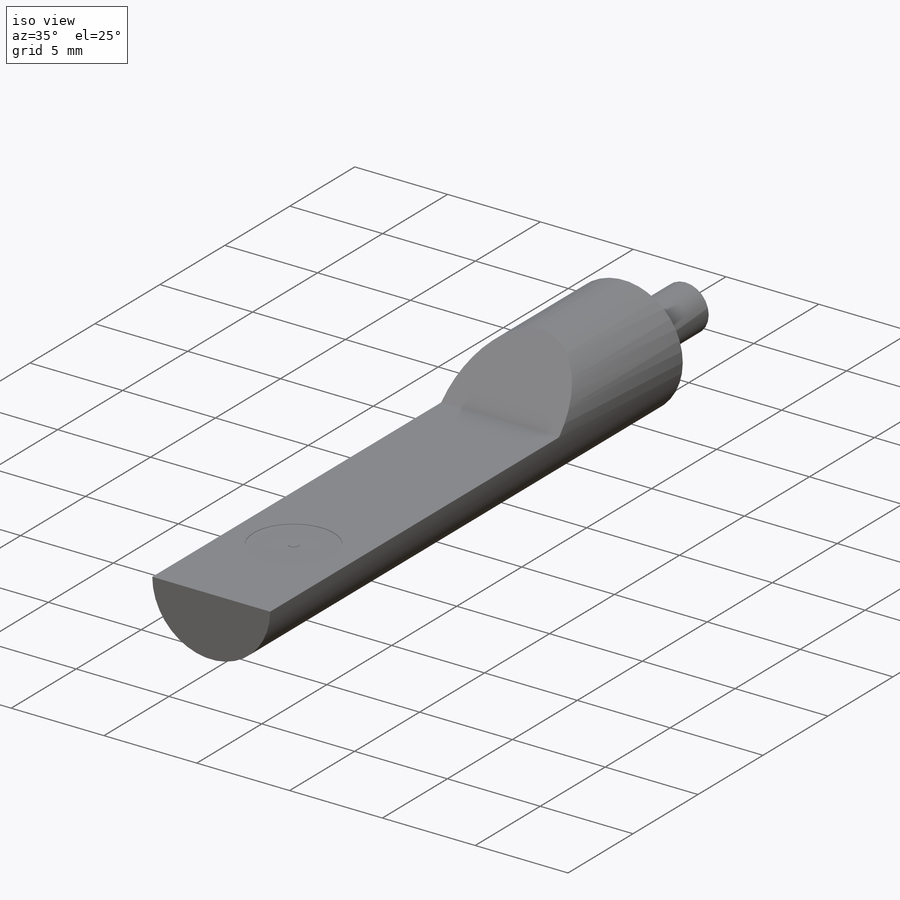
[diagram: iso view]
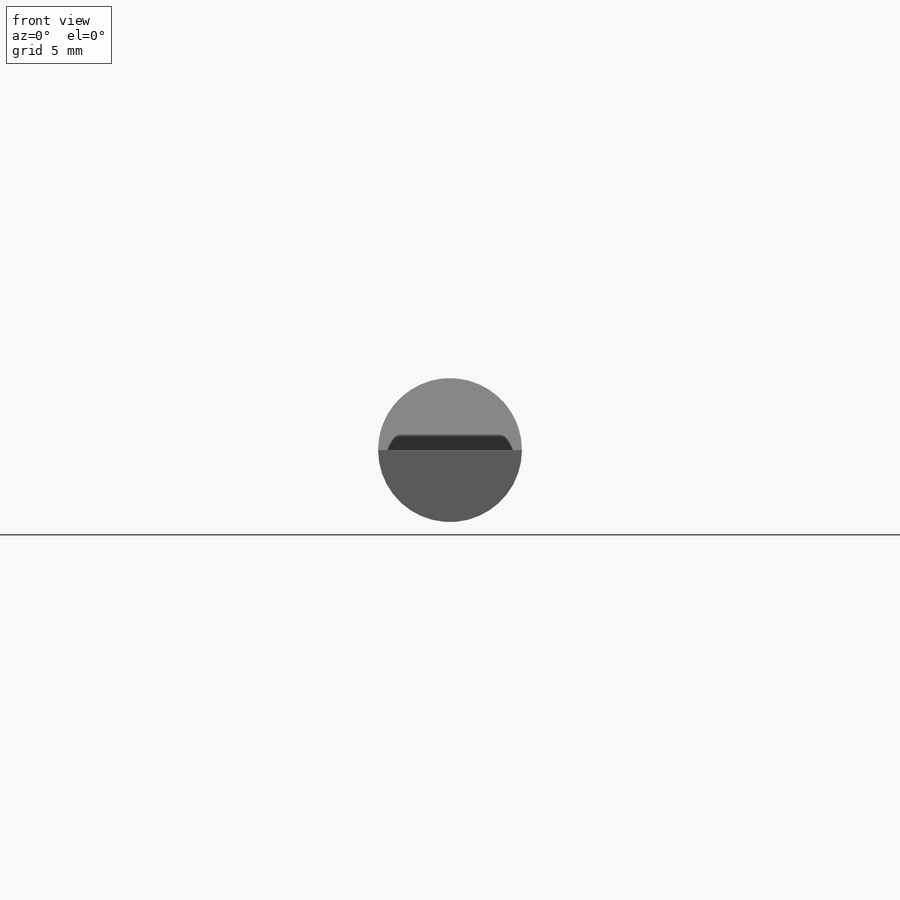
[diagram: front view]
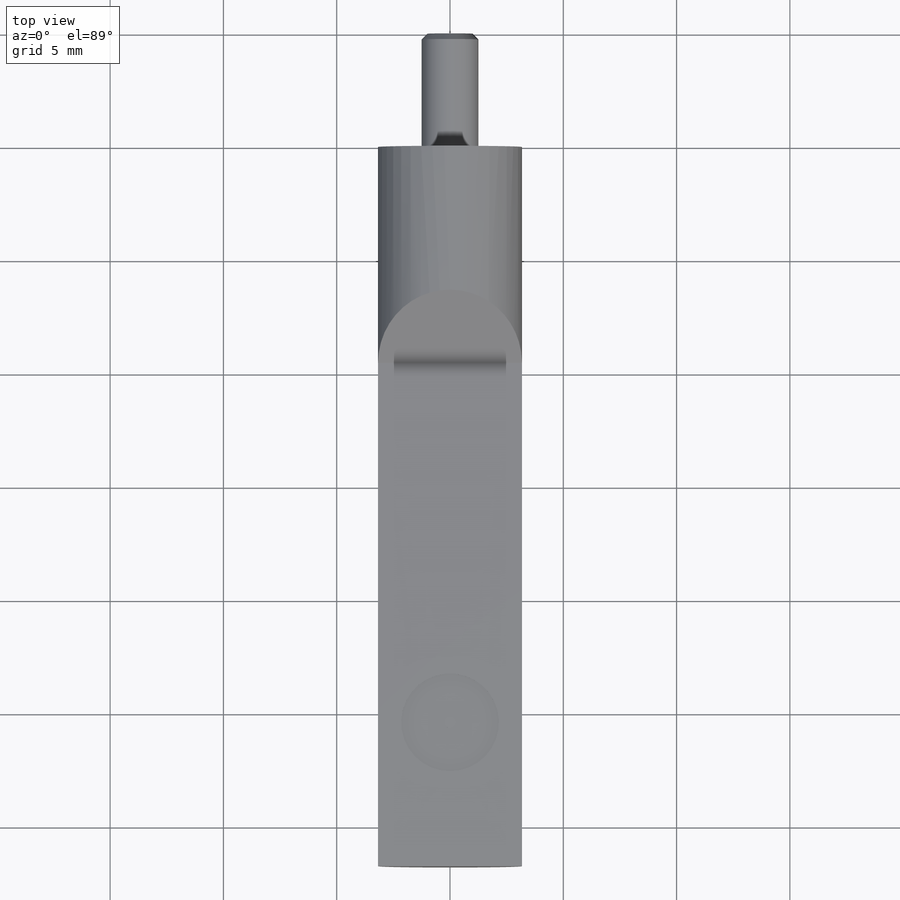
[diagram: top view]
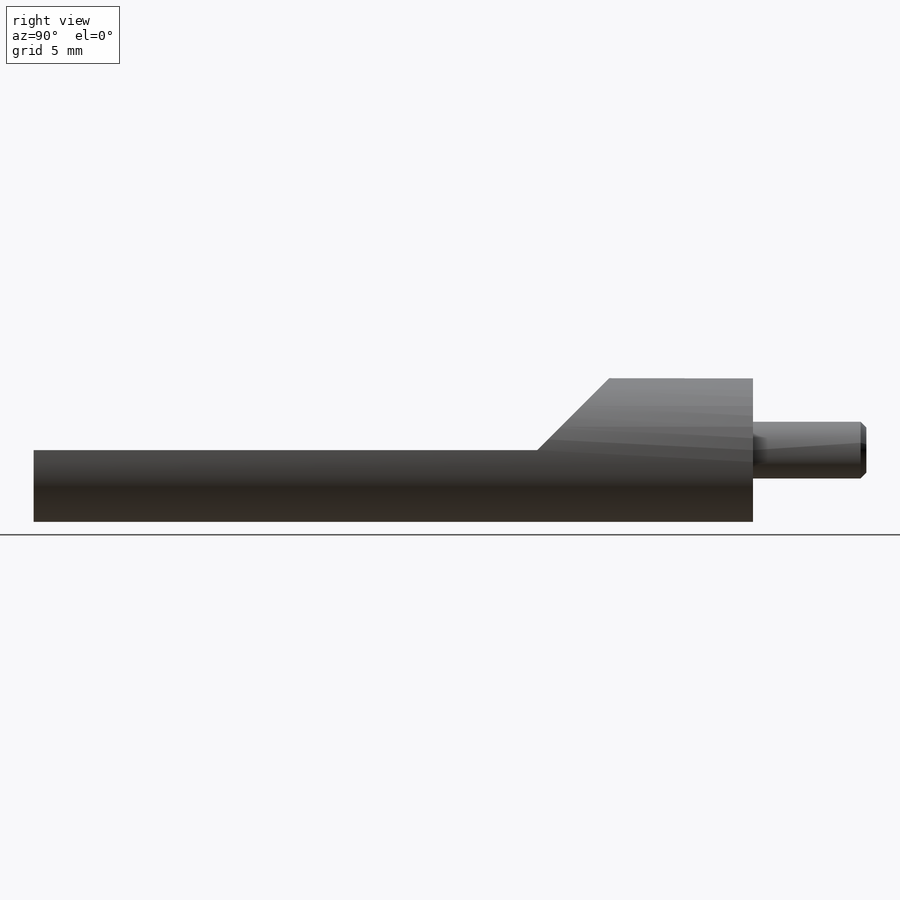
[diagram: right view]
SOLIDWORKS PART (.sldprt)
format: sldprt  version: not decoded by parser v0  size: 213,504 bytes
history: native  units: mm
features: sketch x4, plane x3, extrude x2, cut_extrude x2, material x1, chamfer x1 + 2 further entries (+12 scaffold rows collapsed; 1 parser-record rows omitted)
feature tree (28):
  parser-record x1  (decoder bookkeeping rows leaked as tree rows — omitted from the tree; the rows remain in map.json)
  scaffold x12  (default folders/planes/origin — collapsed)
  material  "Material <not specified>"
  plane  "Plane1"
  plane  "Plane2"
  plane  "Plane3"
  "Axis2"
  "Axis3"
  sketch  "Sketch1"  dims[D1=6.35mm]
  extrude  "Extrude1"  Depth=31.75mm
  sketch  "Sketch2"  dims[D1=2.5mm]
  extrude  "Extrude2"  Depth=5mm
  chamfer  "Chamfer1"  Distance=0.254mm Angle=45deg
  sketch  "Sketch3"  dims[c1.D1=~9.716377mm c2.D1=45.0deg c2.D2=6.35mm c3.D1=~7.59059mm c4.D1=45.0deg c4.D2=6.35mm]
  cut_extrude  "Extrude3"  [1 undecoded]
  sketch  "Sketch4"  dims[D1=4.318mm D2=0.508mm D3=25.4mm]
  cut_extrude  "Extrude4"  Depth=0.0254mm
decode coverage: 8 of 9 modeling features carry decoded parameters; 2 rows unclassified (native names shown)
note: ~ marks probable driven/reference dimensions
note: 1 parameter value undecoded
note: suppression state not decoded; provenance and decode notes live in map.json
